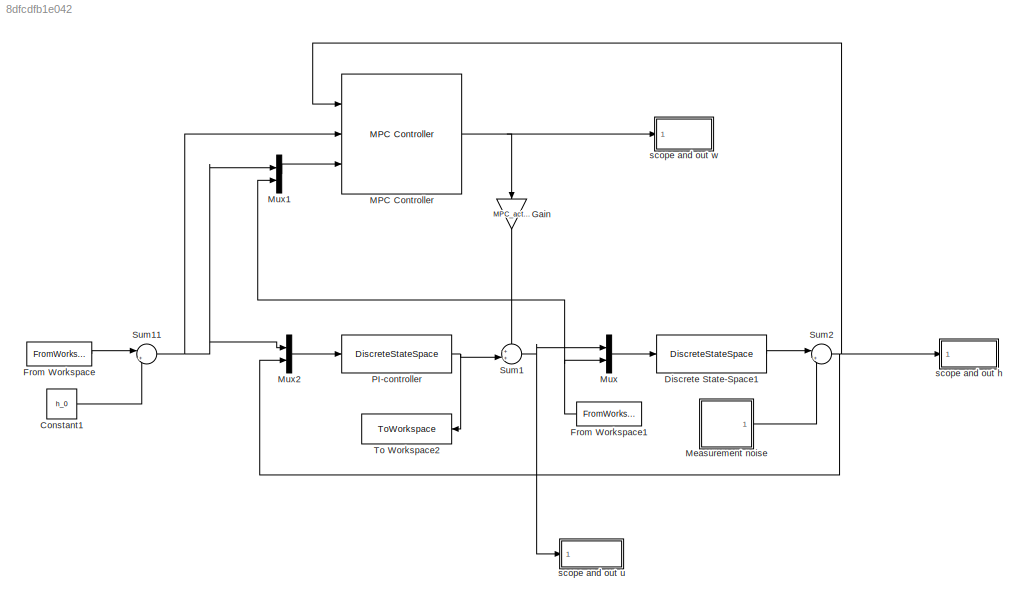
MODEL slx_8dfcdfb1e042
KIND model
CONFIG AbsTol = auto
CONFIG EnableMultiTasking = off
CONFIG FixedStep = auto
CONFIG MaxStep = auto
CONFIG MinStep = auto
CONFIG RelTol = 1e-3
CONFIG SampleTimeConstraint = Unconstrained
CONFIG SolverName = VariableStepAuto
CONFIG StartTime = 0.0
CONFIG StopTime = 10.0
BLOCK [Constant] Constant1
  Value = h_0
BLOCK [DiscreteStateSpace] Discrete State-Space1
  A = sys_pd.A
  B = sys_pd.B
  C = sys_pd.C
  D = sys_pd.D
  InitialCondition = x_0
  SampleTime = dt
BLOCK [FromWorkspace] From Workspace
  SampleTime = dt
  VariableName = ref
BLOCK [FromWorkspace] From Workspace1
  SampleTime = dt
  VariableName = inflow
BLOCK [Gain] Gain
  Gain = MPC_active
  NameLocation = left
BLOCK [Reference] MPC Controller  REF=mpclib/MPC Controller  (lib defined in mdl_ae329e0e0455)
  Ports = [3, 1]
  SCDEnableBlockLinearizationSpecification = on
  SourceBlock = mpclib/MPC Controller
  SourceProductBaseCode = MP
  SourceType = MPC
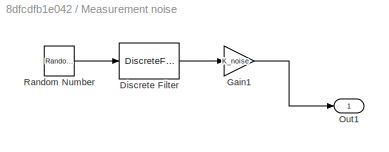
BLOCK [SubSystem] Measurement noise
  Ports = [0, 1]
  RequestExecContextInheritance = off
BLOCK [DiscreteFilter] Measurement noise/Discrete Filter
  Denominator = dist.denom
  InputPortMap = u0
  Ports = [1, 1]
  SampleTime = dt
BLOCK [Gain] Measurement noise/Gain1
  Gain = K_noise
BLOCK [Outport] Measurement noise/Out1
BLOCK [RandomNumber] Measurement noise/Random Number
  SampleTime = dt
  Seed = 1
BLOCK [Mux] Mux
  DisplayOption = bar
  Inputs = 2
  Ports = [2, 1]
BLOCK [Mux] Mux1
  DisplayOption = bar
  Inputs = 2
  Ports = [2, 1]
BLOCK [Mux] Mux2
  DisplayOption = bar
  Inputs = 2
  Ports = [2, 1]
BLOCK [DiscreteStateSpace] PI-controller
  A = sys_kd.A
  B = sys_kd.B
  C = sys_kd.C
  D = sys_kd.D
  InitialCondition = I_0
  SampleTime = dt
BLOCK [Sum] Sum1
  Inputs = ++|
  NameLocation = top
  Ports = [2, 1]
BLOCK [Sum] Sum11
  Inputs = |+-
  Ports = [2, 1]
BLOCK [Sum] Sum2
  Inputs = |++
  Ports = [2, 1]
BLOCK [ToWorkspace] To Workspace2
  FixptAsFi = on
  MaxDataPoints = inf
  Ports = [1]
  SampleTime = dt
  VariableName = v
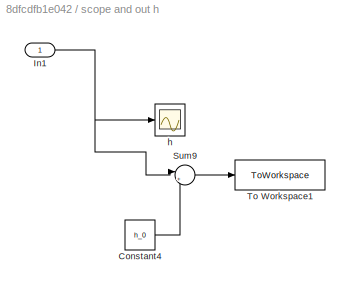
BLOCK [SubSystem] scope and out h
  Ports = [1]
  RequestExecContextInheritance = off
BLOCK [Constant] scope and out h/Constant4
  Value = h_0
BLOCK [Inport] scope and out h/In1
BLOCK [Sum] scope and out h/Sum9
  Inputs = |++
  Ports = [2, 1]
BLOCK [ToWorkspace] scope and out h/To Workspace1
  FixptAsFi = on
  MaxDataPoints = inf
  Ports = [1]
  SampleTime = dt
  VariableName = h
BLOCK [Scope] scope and out h/h
  Floating = off
  NumInputPorts = 1
  Ports = [1]
  ScopeSpecificationString = Simulink.scopes.TimeScopeBlockCfg('CurrentConfiguration', extmgr.ConfigurationSet(extmgr.Configuration('Core','General UI',true),extmgr.Configuration('Core','Source UI',true),extmgr.Configuration('Sources','WiredSimulink',true,'DataLoggingVariableName','ScopeData4'),extmgr.Configuration('Visuals','Time Domain',true,'SerializedDisplays',{struct('MinYLimReal','-11.32277','MaxYLimReal','-6.69853','YL...<+1747ch>
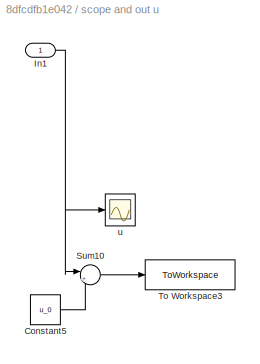
BLOCK [SubSystem] scope and out u
  Ports = [1]
  RequestExecContextInheritance = off
BLOCK [Constant] scope and out u/Constant5
  Value = u_0
BLOCK [Inport] scope and out u/In1
BLOCK [Sum] scope and out u/Sum10
  Inputs = |++
  Ports = [2, 1]
BLOCK [ToWorkspace] scope and out u/To Workspace3
  FixptAsFi = on
  MaxDataPoints = inf
  Ports = [1]
  SampleTime = dt
  VariableName = u
BLOCK [Scope] scope and out u/u
  Floating = off
  NumInputPorts = 1
  Ports = [1]
  ScopeSpecificationString = Simulink.scopes.TimeScopeBlockCfg('CurrentConfiguration', extmgr.ConfigurationSet(extmgr.Configuration('Core','General UI',true),extmgr.Configuration('Core','Source UI',true),extmgr.Configuration('Sources','WiredSimulink',true,'DataLoggingVariableName','ScopeData5'),extmgr.Configuration('Visuals','Time Domain',true,'SerializedDisplays',{struct('MinYLimReal','40.79017','MaxYLimReal','58.26165','YLa...<+1399ch>
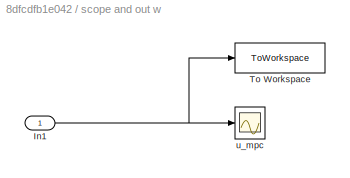
BLOCK [SubSystem] scope and out w
  Ports = [1]
  RequestExecContextInheritance = off
BLOCK [Inport] scope and out w/In1
BLOCK [ToWorkspace] scope and out w/To Workspace
  FixptAsFi = on
  MaxDataPoints = inf
  Ports = [1]
  SampleTime = dt
  VariableName = w
BLOCK [Scope] scope and out w/u_mpc
  Floating = off
  NumInputPorts = 1
  Ports = [1]
  ScopeSpecificationString = Simulink.scopes.TimeScopeBlockCfg('CurrentConfiguration', extmgr.ConfigurationSet(extmgr.Configuration('Core','General UI',true),extmgr.Configuration('Core','Source UI',true),extmgr.Configuration('Sources','WiredSimulink',true),extmgr.Configuration('Visuals','Time Domain',true,'SerializedDisplays',{struct('MinYLimReal','-1.10823','MaxYLimReal','2.37218','YLabelReal','','MinYLimMag','0.00000','MaxY...<+1712ch>
LINE Constant1:1 -> Sum11:2
LINE Discrete State-Space1:1 -> Sum2:1
NET From Workspace1:1 -> Mux1:2, Mux:2
LINE From Workspace:1 -> Sum11:1
LINE Gain:1 -> Sum1:1
NET MPC Controller:1 -> Gain:1, scope and out w:1
LINE Measurement noise/Discrete Filter:1 -> Measurement noise/Gain1:1
LINE Measurement noise/Gain1:1 -> Measurement noise/Out1:1
LINE Measurement noise/Random Number:1 -> Measurement noise/Discrete Filter:1
LINE Measurement noise:1 -> Sum2:2
LINE Mux1:1 -> MPC Controller:3
LINE Mux2:1 -> PI-controller:1
LINE Mux:1 -> Discrete State-Space1:1
NET PI-controller:1 -> Sum1:2, To Workspace2:1
NET Sum11:1 -> MPC Controller:2, Mux1:1, Mux2:1
NET Sum1:1 -> Mux:1, scope and out u:1
NET Sum2:1 -> MPC Controller:1, Mux2:2, scope and out h:1
LINE scope and out h/Constant4:1 -> scope and out h/Sum9:2
NET scope and out h/In1:1 -> scope and out h/Sum9:1, scope and out h/h:1
LINE scope and out h/Sum9:1 -> scope and out h/To Workspace1:1
LINE scope and out u/Constant5:1 -> scope and out u/Sum10:2
NET scope and out u/In1:1 -> scope and out u/Sum10:1, scope and out u/u:1
LINE scope and out u/Sum10:1 -> scope and out u/To Workspace3:1
NET scope and out w/In1:1 -> scope and out w/To Workspace:1, scope and out w/u_mpc:1
note: NET lines group one-source signal fan-out (src -> all destinations, sorted); 1:1 wires keep LINE
